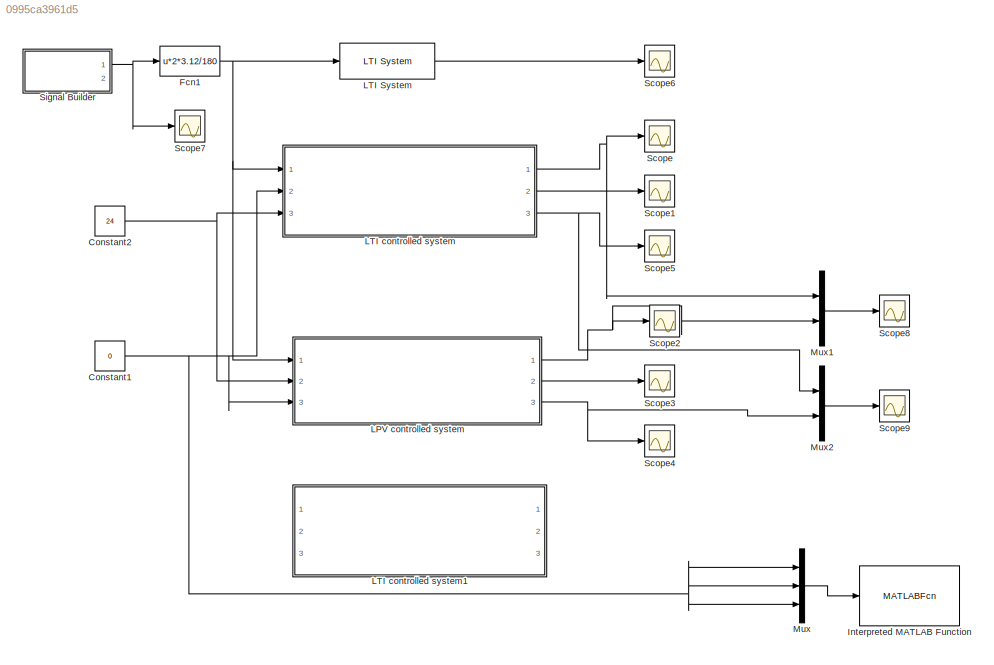
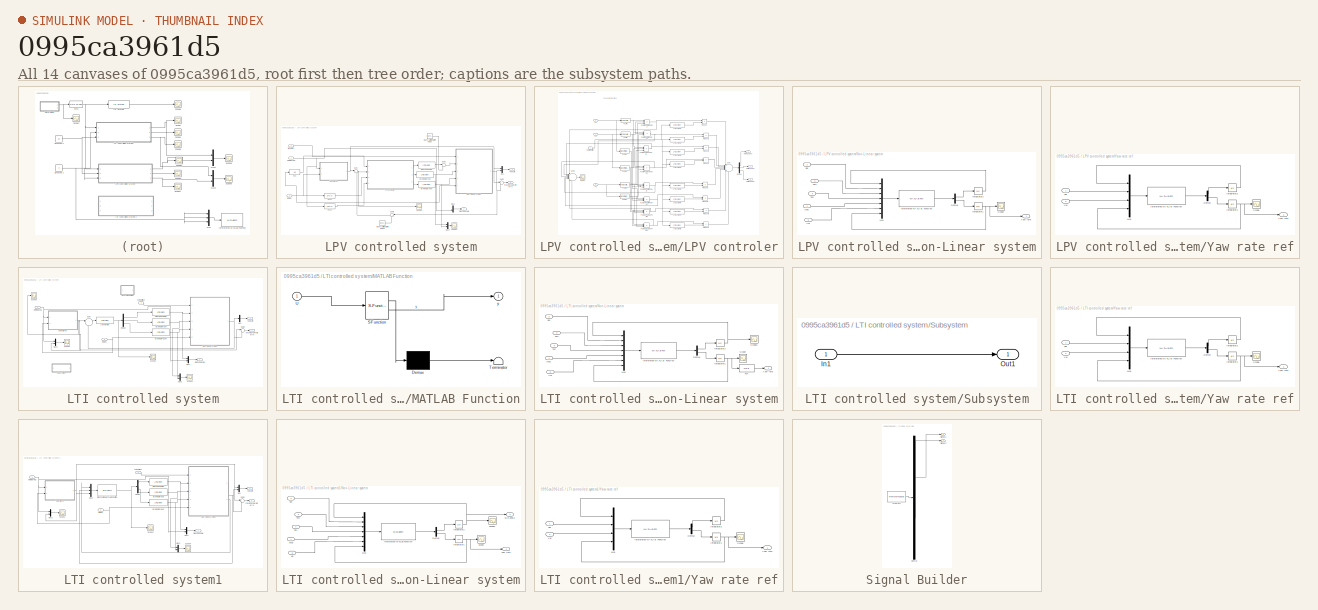
[diagram: thumbnail index - all 14 canvases of the model, root first then tree order]
MODEL slx_0995ca3961d5
KIND model
CONFIG AbsTol = auto
CONFIG EnableMultiTasking = on
CONFIG FixedStep = auto
CONFIG MaxStep = auto
CONFIG MinStep = auto
CONFIG RelTol = 1e-3
CONFIG SampleTimeConstraint = Unconstrained
CONFIG Solver = ode15s
CONFIG SolverName = ode15s
CONFIG StartTime = 0.0
CONFIG StopTime = 10.0
BLOCK [Constant] Constant1
  Value = 0
BLOCK [Constant] Constant2
  Value = 24
BLOCK [Fcn] Fcn1
  Expr = u*2*3.12/180
BLOCK [MATLABFcn] Interpreted MATLAB Function
  Commented = through
  MATLABFcn = MPC_control
  OutputDimensions = 3
  Ports = [1, 1]
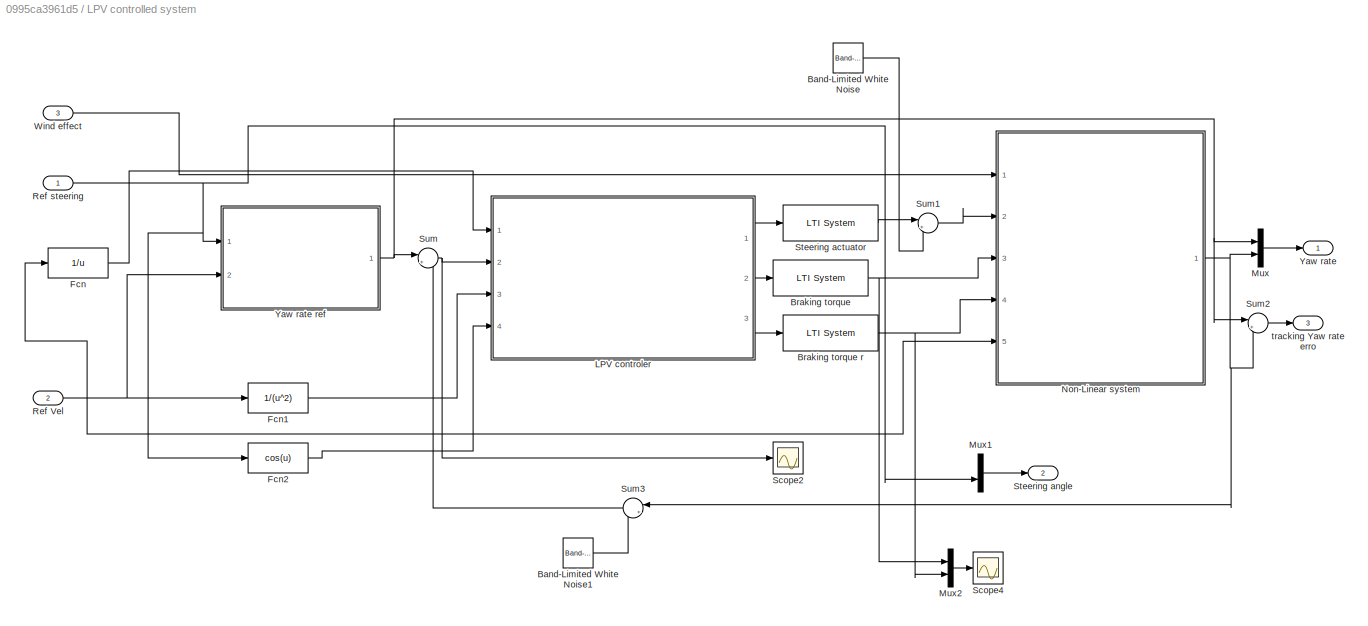
BLOCK [SubSystem] LPV controlled system
  Ports = [3, 3]
  RequestExecContextInheritance = off
BLOCK [Reference] LPV controlled system/Band-Limited White Noise  REF=simulink/Sources/Band-Limited
White Noise
  Commented = on
  Ports = [0, 1]
  SourceBlock = simulink/Sources/Band-Limited\nWhite Noise
  SourceProductBaseCode = SL
  SourceType = Band-Limited White Noise.
BLOCK [Reference] LPV controlled system/Band-Limited White Noise1  REF=simulink/Sources/Band-Limited
White Noise
  Commented = on
  Ports = [0, 1]
  SourceBlock = simulink/Sources/Band-Limited\nWhite Noise
  SourceProductBaseCode = SL
  SourceType = Band-Limited White Noise.
BLOCK [Reference] LPV controlled system/Braking torque  REF=cstblocks/LTI System
  Ports = [1, 1]
  SourceBlock = cstblocks/LTI System
  SourceProductBaseCode = CT
  SourceType = LTI Block
BLOCK [Reference] LPV controlled system/Braking torque r  REF=cstblocks/LTI System
  Ports = [1, 1]
  SourceBlock = cstblocks/LTI System
  SourceProductBaseCode = CT
  SourceType = LTI Block
BLOCK [Fcn] LPV controlled system/Fcn
  Expr = 1/u
BLOCK [Fcn] LPV controlled system/Fcn1
  Expr = 1/(u^2)
BLOCK [Fcn] LPV controlled system/Fcn2
  Expr = cos(u)
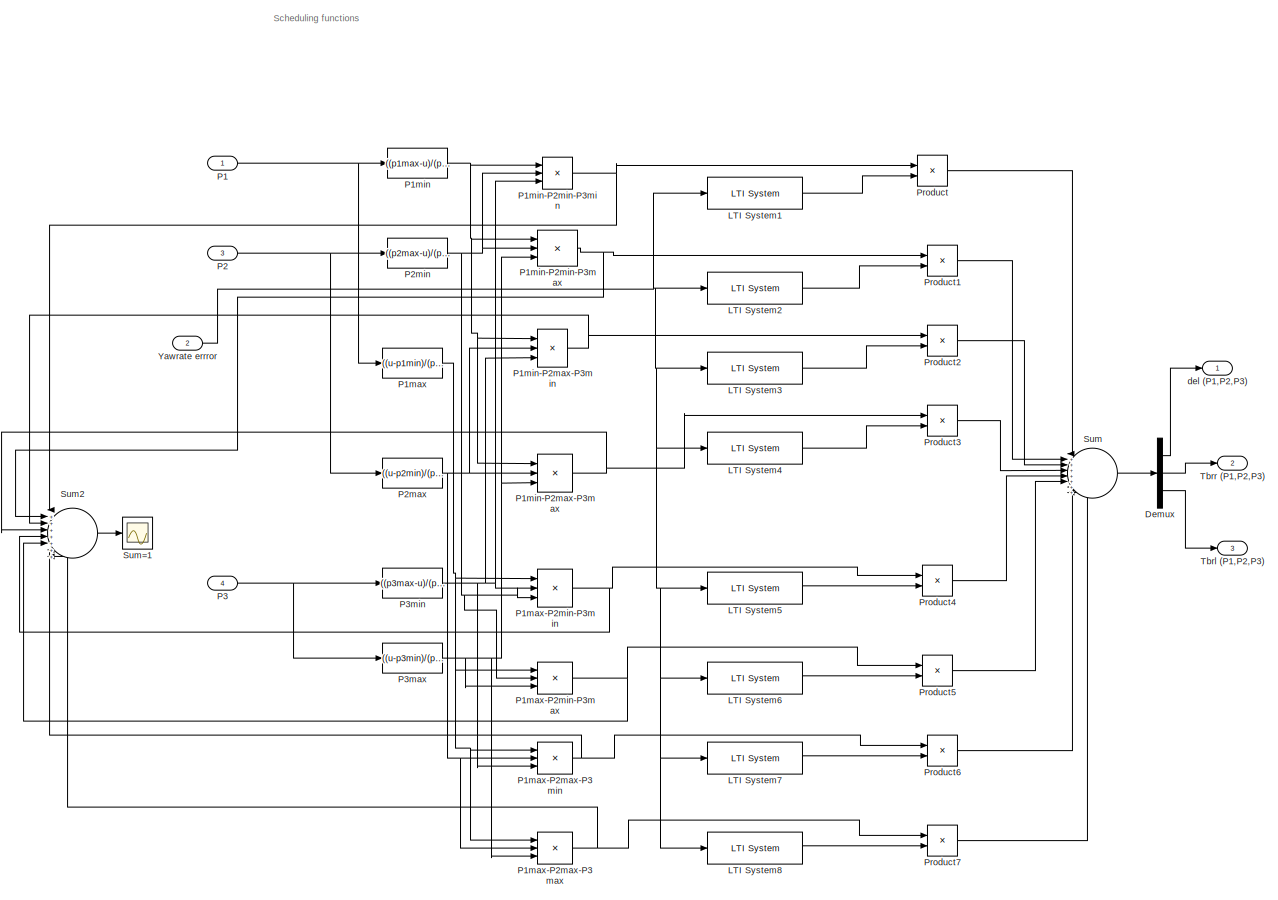
[diagram: LPV controlled system/LPV controler - part 1/1, most of the canvas]
BLOCK [SubSystem] LPV controlled system/LPV controler
  NameLocation = top
  Ports = [4, 3]
  RequestExecContextInheritance = off
BLOCK [Demux] LPV controlled system/LPV controler/Demux
  Outputs = 3
  Ports = [1, 3]
BLOCK [Reference] LPV controlled system/LPV controler/LTI System1  REF=cstblocks/LTI System
  Ports = [1, 1]
  SourceBlock = cstblocks/LTI System
  SourceProductBaseCode = CT
  SourceType = LTI Block
BLOCK [Reference] LPV controlled system/LPV controler/LTI System2  REF=cstblocks/LTI System
  Ports = [1, 1]
  SourceBlock = cstblocks/LTI System
  SourceProductBaseCode = CT
  SourceType = LTI Block
BLOCK [Reference] LPV controlled system/LPV controler/LTI System3  REF=cstblocks/LTI System
  Ports = [1, 1]
  SourceBlock = cstblocks/LTI System
  SourceProductBaseCode = CT
  SourceType = LTI Block
BLOCK [Reference] LPV controlled system/LPV controler/LTI System4  REF=cstblocks/LTI System
  Ports = [1, 1]
  SourceBlock = cstblocks/LTI System
  SourceProductBaseCode = CT
  SourceType = LTI Block
BLOCK [Reference] LPV controlled system/LPV controler/LTI System5  REF=cstblocks/LTI System
  Ports = [1, 1]
  SourceBlock = cstblocks/LTI System
  SourceProductBaseCode = CT
  SourceType = LTI Block
BLOCK [Reference] LPV controlled system/LPV controler/LTI System6  REF=cstblocks/LTI System
  Ports = [1, 1]
  SourceBlock = cstblocks/LTI System
  SourceProductBaseCode = CT
  SourceType = LTI Block
BLOCK [Reference] LPV controlled system/LPV controler/LTI System7  REF=cstblocks/LTI System
  Ports = [1, 1]
  SourceBlock = cstblocks/LTI System
  SourceProductBaseCode = CT
  SourceType = LTI Block
BLOCK [Reference] LPV controlled system/LPV controler/LTI System8  REF=cstblocks/LTI System
  Ports = [1, 1]
  SourceBlock = cstblocks/LTI System
  SourceProductBaseCode = CT
  SourceType = LTI Block
BLOCK [Inport] LPV controlled system/LPV controler/P1
BLOCK [Fcn] LPV controlled system/LPV controler/P1max
  Expr = ((u-p1min)/(p1max-p1min))
BLOCK [Product] LPV controlled system/LPV controler/P1max-P2max-P3max
  Inputs = 3
  Ports = [3, 1]
BLOCK [Product] LPV controlled system/LPV controler/P1max-P2max-P3min
  Inputs = 3
  Ports = [3, 1]
BLOCK [Product] LPV controlled system/LPV controler/P1max-P2min-P3max
  Inputs = 3
  Ports = [3, 1]
BLOCK [Product] LPV controlled system/LPV controler/P1max-P2min-P3min
  Inputs = 3
  Ports = [3, 1]
BLOCK [Fcn] LPV controlled system/LPV controler/P1min
  Expr = ((p1max-u)/(p1max-p1min))
BLOCK [Product] LPV controlled system/LPV controler/P1min-P2max-P3max
  Inputs = 3
  Ports = [3, 1]
BLOCK [Product] LPV controlled system/LPV controler/P1min-P2max-P3min
  Inputs = 3
  Ports = [3, 1]
BLOCK [Product] LPV controlled system/LPV controler/P1min-P2min-P3max
  Inputs = 3
  Ports = [3, 1]
BLOCK [Product] LPV controlled system/LPV controler/P1min-P2min-P3min
  Inputs = 3
  Ports = [3, 1]
BLOCK [Inport] LPV controlled system/LPV controler/P2
  Port = 3
BLOCK [Fcn] LPV controlled system/LPV controler/P2max
  Expr = ((u-p2min)/(p2max-p2min))
BLOCK [Fcn] LPV controlled system/LPV controler/P2min
  Expr = ((p2max-u)/(p2max-p2min))
BLOCK [Inport] LPV controlled system/LPV controler/P3
  Port = 4
BLOCK [Fcn] LPV controlled system/LPV controler/P3max
  Expr = ((u-p3min)/(p3max-p3min))
BLOCK [Fcn] LPV controlled system/LPV controler/P3min
  Expr = ((p3max-u)/(p3max-p3min))
BLOCK [Product] LPV controlled system/LPV controler/Product
  Ports = [2, 1]
BLOCK [Product] LPV controlled system/LPV controler/Product1
  Ports = [2, 1]
BLOCK [Product] LPV controlled system/LPV controler/Product2
  Ports = [2, 1]
BLOCK [Product] LPV controlled system/LPV controler/Product3
  Ports = [2, 1]
BLOCK [Product] LPV controlled system/LPV controler/Product4
  Ports = [2, 1]
BLOCK [Product] LPV controlled system/LPV controler/Product5
  Ports = [2, 1]
BLOCK [Product] LPV controlled system/LPV controler/Product6
  Ports = [2, 1]
BLOCK [Product] LPV controlled system/LPV controler/Product7
  Ports = [2, 1]
BLOCK [Sum] LPV controlled system/LPV controler/Sum
  Inputs = |++++++++
  Ports = [8, 1]
BLOCK [Sum] LPV controlled system/LPV controler/Sum2
  Inputs = |++++++++
  Ports = [8, 1]
BLOCK [Scope] LPV controlled system/LPV controler/Sum=1
  Floating = off
  NumInputPorts = 1
  Ports = [1]
  ScopeSpecificationString = C++SS(StrPVP('Location','[5, 49, 1371, 727]'),StrPVP('Open','off'),MxPVP('AxesTitles',54,'struct(''axes1'',''%<SignalLabel>'')'),MxPVP('ScopeGraphics',57,'struct(''FigureColor'',''[0.5 0.5 0.5]'',''AxesColor'',''[0 0 0]'',''AxesTickColor'',''[1 1 1]'',''LineColors'',''[1 1 0;1 0 1;0 1 1;1 0 0;0 1 0;0 0 1]'',''LineStyles'',''-|-|-|-|-|-'',''LineWidths'',''[0.5 0.5 0.5 0.5 0.5 0.5]'',''MarkerStyles'...<+190ch>
BLOCK [Outport] LPV controlled system/LPV controler/Tbrl (P1,P2,P3)
  Port = 3
BLOCK [Outport] LPV controlled system/LPV controler/Tbrr (P1,P2,P3)
  Port = 2
BLOCK [Inport] LPV controlled system/LPV controler/Yawrate errror 
  Port = 2
BLOCK [Outport] LPV controlled system/LPV controler/del (P1,P2,P3)
BLOCK [Mux] LPV controlled system/Mux
  DisplayOption = bar
  Inputs = 2
  Ports = [2, 1]
BLOCK [Mux] LPV controlled system/Mux1
  DisplayOption = bar
  Inputs = 2
  Ports = [2, 1]
BLOCK [Mux] LPV controlled system/Mux2
  DisplayOption = bar
  Inputs = 2
  Ports = [2, 1]
BLOCK [SubSystem] LPV controlled system/Non-Linear system
  Ports = [5, 1]
  RequestExecContextInheritance = off
BLOCK [Demux] LPV controlled system/Non-Linear system/Demux
  Outputs = 2
  Ports = [1, 2]
BLOCK [Integrator] LPV controlled system/Non-Linear system/Integrator1
  Ports = [1, 1]
BLOCK [Integrator] LPV controlled system/Non-Linear system/Integrator2
  Ports = [1, 1]
BLOCK [MATLABFcn] LPV controlled system/Non-Linear system/Interpreted MATLAB Function
  MATLABFcn = Nonbicycle
  OutputDimensions = 2
  Ports = [1, 1]
BLOCK [Inport] LPV controlled system/Non-Linear system/Mdz
BLOCK [Mux] LPV controlled system/Non-Linear system/Mux
  DisplayOption = bar
  Inputs = 7
  Ports = [7, 1]
BLOCK [Scope] LPV controlled system/Non-Linear system/Scope
  Floating = off
  NumInputPorts = 1
  Ports = [1]
  ScopeSpecificationString = C++SS(StrPVP('Location','[1, 49, 1367, 727]'),StrPVP('Open','off'),MxPVP('AxesTitles',54,'struct(''axes1'',''%<SignalLabel>'')'),MxPVP('ScopeGraphics',57,'struct(''FigureColor'',''[0.5 0.5 0.5]'',''AxesColor'',''[0 0 0]'',''AxesTickColor'',''[1 1 1]'',''LineColors'',''[1 1 0;1 0 1;0 1 1;1 0 0;0 1 0;0 0 1]'',''LineStyles'',''-|-|-|-|-|-'',''LineWidths'',''[0.5 0.5 0.5 0.5 0.5 0.5]'',''MarkerStyles'...<+237ch>  <repeated x3 — deduplicated; at blocks: Scope>
BLOCK [Inport] LPV controlled system/Non-Linear system/Tbrl
  Port = 4
BLOCK [Inport] LPV controlled system/Non-Linear system/Tbrr
  Port = 3
BLOCK [Inport] LPV controlled system/Non-Linear system/Vel
  Port = 5
BLOCK [Outport] LPV controlled system/Non-Linear system/Yaw rate
BLOCK [Inport] LPV controlled system/Non-Linear system/del
  Port = 2
BLOCK [Inport] LPV controlled system/Ref Vel
  Port = 2
BLOCK [Inport] LPV controlled system/Ref steering
BLOCK [Scope] LPV controlled system/Scope2
  Floating = off
  NumInputPorts = 1
  Ports = [1]
  ScopeSpecificationString = C++SS(StrPVP('Location','[1, 49, 1367, 727]'),StrPVP('Open','off'),MxPVP('AxesTitles',54,'struct(''axes1'',''%<SignalLabel>'')'),MxPVP('ScopeGraphics',57,'struct(''FigureColor'',''[0.5 0.5 0.5]'',''AxesColor'',''[0 0 0]'',''AxesTickColor'',''[1 1 1]'',''LineColors'',''[1 1 0;1 0 1;0 1 1;1 0 0;0 1 0;0 0 1]'',''LineStyles'',''-|-|-|-|-|-'',''LineWidths'',''[0.5 0.5 0.5 0.5 0.5 0.5]'',''MarkerStyles'...<+310ch>  <repeated x3 — deduplicated; at blocks: Scope2>
BLOCK [Scope] LPV controlled system/Scope4
  Floating = off
  NumInputPorts = 1
  Ports = [1]
  ScopeSpecificationString = C++SS(StrPVP('Location','[1, 49, 1367, 727]'),StrPVP('Open','off'),MxPVP('AxesTitles',54,'struct(''axes1'',''%<SignalLabel>'')'),MxPVP('ScopeGraphics',57,'struct(''FigureColor'',''[0.5 0.5 0.5]'',''AxesColor'',''[0 0 0]'',''AxesTickColor'',''[1 1 1]'',''LineColors'',''[1 1 0;1 0 1;0 1 1;1 0 0;0 1 0;0 0 1]'',''LineStyles'',''-|-|-|-|-|-'',''LineWidths'',''[0.5 0.5 0.5 0.5 0.5 0.5]'',''MarkerStyles'...<+355ch>
BLOCK [Reference] LPV controlled system/Steering actuator  REF=cstblocks/LTI System
  Ports = [1, 1]
  SourceBlock = cstblocks/LTI System
  SourceProductBaseCode = CT
  SourceType = LTI Block
BLOCK [Outport] LPV controlled system/Steering angle
  Port = 2
BLOCK [Sum] LPV controlled system/Sum
  Inputs = |+-
  Ports = [2, 1]
BLOCK [Sum] LPV controlled system/Sum1
  Inputs = |++
  Ports = [2, 1]
BLOCK [Sum] LPV controlled system/Sum2
  Inputs = |+-
  Ports = [2, 1]
BLOCK [Sum] LPV controlled system/Sum3
  Inputs = |++
  Ports = [2, 1]
BLOCK [Inport] LPV controlled system/Wind effect
  Port = 3
BLOCK [Outport] LPV controlled system/Yaw rate
BLOCK [SubSystem] LPV controlled system/Yaw rate ref
  Ports = [2, 1]
  RequestExecContextInheritance = off
BLOCK [Demux] LPV controlled system/Yaw rate ref/Demux
  Outputs = 2
  Ports = [1, 2]
BLOCK [Integrator] LPV controlled system/Yaw rate ref/Integrator1
  Ports = [1, 1]
BLOCK [Integrator] LPV controlled system/Yaw rate ref/Integrator2
  Ports = [1, 1]
BLOCK [MATLABFcn] LPV controlled system/Yaw rate ref/Interpreted MATLAB Function
  MATLABFcn = Reference
  OutputDimensions = 2
  Ports = [1, 1]
BLOCK [Mux] LPV controlled system/Yaw rate ref/Mux
  DisplayOption = bar
  Ports = [4, 1]
BLOCK [Scope] LPV controlled system/Yaw rate ref/Scope
  Floating = off
  NumInputPorts = 1
  Ports = [1]
  ScopeSpecificationString = C++SS(StrPVP('Location','[1, 49, 1367, 727]'),StrPVP('Open','off'),MxPVP('AxesTitles',54,'struct(''axes1'',''%<SignalLabel>'')'),MxPVP('ScopeGraphics',57,'struct(''FigureColor'',''[0.5 0.5 0.5]'',''AxesColor'',''[0 0 0]'',''AxesTickColor'',''[1 1 1]'',''LineColors'',''[1 1 0;1 0 1;0 1 1;1 0 0;0 1 0;0 0 1]'',''LineStyles'',''-|-|-|-|-|-'',''LineWidths'',''[0.5 0.5 0.5 0.5 0.5 0.5]'',''MarkerStyles'...<+270ch>  <repeated x3 — deduplicated; at blocks: Scope>
BLOCK [Inport] LPV controlled system/Yaw rate ref/Vel
  Port = 2
BLOCK [Outport] LPV controlled system/Yaw rate ref/Yaw rate
BLOCK [Inport] LPV controlled system/Yaw rate ref/del
BLOCK [Outport] LPV controlled system/tracking Yaw rate erro
  Port = 3
BLOCK [Reference] LTI System  REF=cstblocks/LTI System
  Ports = [1, 1]
  SourceBlock = cstblocks/LTI System
  SourceProductBaseCode = CT
  SourceType = LTI Block
BLOCK [SubSystem] LTI controlled system
  Ports = [3, 3]
  RequestExecContextInheritance = off
BLOCK [Reference] LTI controlled system/Braking torque  REF=cstblocks/LTI System
  Ports = [1, 1]
  SourceBlock = cstblocks/LTI System
  SourceProductBaseCode = CT
  SourceType = LTI Block
BLOCK [Reference] LTI controlled system/Braking torque r  REF=cstblocks/LTI System
  Ports = [1, 1]
  SourceBlock = cstblocks/LTI System
  SourceProductBaseCode = CT
  SourceType = LTI Block
BLOCK [Demux] LTI controlled system/Demux
  Outputs = 3
  Ports = [1, 3]
BLOCK [Reference] LTI controlled system/LTI controller  REF=cstblocks/LTI System
  Ports = [1, 1]
  SourceBlock = cstblocks/LTI System
  SourceProductBaseCode = CT
  SourceType = LTI Block
BLOCK [SubSystem] LTI controlled system/MATLAB Function
  ErrorFcn = Stateflow.Translate.translate
  PermitHierarchicalResolution = ExplicitOnly
  Ports = [1, 1]
  RequestExecContextInheritance = off
  SFBlockType = MATLAB Function
  TreatAsAtomicUnit = on
BLOCK [Demux] LTI controlled system/MATLAB Function/ Demux 
  Outputs = 1
  Ports = [1, 1]
BLOCK [S-Function] LTI controlled system/MATLAB Function/ SFunction 
  EnableBusSupport = off
  FunctionName = sf_sfun
  PortCounts = [1 2]
  Ports = [1, 2]
  SFcnIsStateOwnerBlock = off
  SFunctionDeploymentMode = off
  Tag = Stateflow S-Function 2
BLOCK [Terminator] LTI controlled system/MATLAB Function/ Terminator 
BLOCK [Inport] LTI controlled system/MATLAB Function/U
BLOCK [Outport] LTI controlled system/MATLAB Function/y
BLOCK [Mux] LTI controlled system/Mux
  DisplayOption = bar
  Inputs = 1
  Ports = [1, 1]
BLOCK [Mux] LTI controlled system/Mux1
  DisplayOption = bar
  Inputs = 2
  Ports = [2, 1]
BLOCK [Mux] LTI controlled system/Mux2
  DisplayOption = bar
  Inputs = 2
  Ports = [2, 1]
BLOCK [Mux] LTI controlled system/Mux3
  DisplayOption = bar
  Inputs = 2
  Ports = [2, 1]
BLOCK [SubSystem] LTI controlled system/Non-Linear system
  Ports = [5, 1]
  RequestExecContextInheritance = off
BLOCK [Demux] LTI controlled system/Non-Linear system/Demux
  Outputs = 2
  Ports = [1, 2]
BLOCK [Fcn] LTI controlled system/Non-Linear system/Fcn
  Expr = u*0.8
BLOCK [Integrator] LTI controlled system/Non-Linear system/Integrator1
  Ports = [1, 1]
BLOCK [Integrator] LTI controlled system/Non-Linear system/Integrator2
  Ports = [1, 1]
BLOCK [MATLABFcn] LTI controlled system/Non-Linear system/Interpreted MATLAB Function
  MATLABFcn = Nonbicycle
  OutputDimensions = 2
  Ports = [1, 1]
BLOCK [Inport] LTI controlled system/Non-Linear system/Mdz
BLOCK [Mux] LTI controlled system/Non-Linear system/Mux
  DisplayOption = bar
  Inputs = 7
  Ports = [7, 1]
BLOCK [Scope] LTI controlled system/Non-Linear system/Scope
  Floating = off
  NumInputPorts = 1
  Ports = [1]
BLOCK [Scope] LTI controlled system/Non-Linear system/Scope1
  Floating = off
  NumInputPorts = 1
  Ports = [1]
  ScopeSpecificationString = C++SS(StrPVP('Location','[1, 49, 1367, 727]'),StrPVP('Open','off'),MxPVP('AxesTitles',54,'struct(''axes1'',''%<SignalLabel>'')'),MxPVP('ScopeGraphics',57,'struct(''FigureColor'',''[0.5 0.5 0.5]'',''AxesColor'',''[0 0 0]'',''AxesTickColor'',''[1 1 1]'',''LineColors'',''[1 1 0;1 0 1;0 1 1;1 0 0;0 1 0;0 0 1]'',''LineStyles'',''-|-|-|-|-|-'',''LineWidths'',''[0.5 0.5 0.5 0.5 0.5 0.5]'',''MarkerStyles'...<+269ch>
BLOCK [Inport] LTI controlled system/Non-Linear system/Tbrl
  Port = 4
BLOCK [Inport] LTI controlled system/Non-Linear system/Tbrr
  Port = 3
BLOCK [Inport] LTI controlled system/Non-Linear system/Vel
  Port = 5
BLOCK [Outport] LTI controlled system/Non-Linear system/Yaw rate
BLOCK [Inport] LTI controlled system/Non-Linear system/del
  Port = 2
BLOCK [Inport] LTI controlled system/Ref Vel
  Port = 3
BLOCK [Inport] LTI controlled system/Ref steering
BLOCK [Scope] LTI controlled system/Scope1
  Floating = off
  NumInputPorts = 1
  Ports = [1]
  ScopeSpecificationString = C++SS(StrPVP('Location','[5, 49, 1371, 727]'),StrPVP('Open','off'),MxPVP('AxesTitles',54,'struct(''axes1'',''%<SignalLabel>'')'),MxPVP('ScopeGraphics',57,'struct(''FigureColor'',''[0.5 0.5 0.5]'',''AxesColor'',''[0 0 0]'',''AxesTickColor'',''[1 1 1]'',''LineColors'',''[1 1 0;1 0 1;0 1 1;1 0 0;0 1 0;0 0 1]'',''LineStyles'',''-|-|-|-|-|-'',''LineWidths'',''[0.5 0.5 0.5 0.5 0.5 0.5]'',''MarkerStyles'...<+320ch>  <repeated x4 — deduplicated; at blocks: Scope1, Scope, Scope4>
BLOCK [Scope] LTI controlled system/Scope2
  Floating = off
  NumInputPorts = 1
  Ports = [1]
BLOCK [Scope] LTI controlled system/Scope3
  Floating = off
  NumInputPorts = 1
  Ports = [1]
  ScopeSpecificationString = C++SS(StrPVP('Location','[1, 49, 1367, 727]'),StrPVP('Open','off'),MxPVP('AxesTitles',54,'struct(''axes1'',''%<SignalLabel>'')'),MxPVP('ScopeGraphics',57,'struct(''FigureColor'',''[0.501960784313725 0.501960784313725 0.501960784313725]'',''AxesColor'',''[0 0 0]'',''AxesTickColor'',''[1 1 1]'',''LineColors'',''[1 1 0;1 0 1;0 1 1;1 0 0;0 1 0;0 0 1]'',''LineStyles'',''-|-|-|-|-|-'',''LineWidths'',''[...<+390ch>
BLOCK [Scope] LTI controlled system/Scope4
  Floating = off
  NumInputPorts = 1
  Ports = [1]
  ScopeSpecificationString = C++SS(StrPVP('Location','[1, 49, 1367, 727]'),StrPVP('Open','off'),MxPVP('AxesTitles',54,'struct(''axes1'',''%<SignalLabel>'')'),MxPVP('ScopeGraphics',57,'struct(''FigureColor'',''[0.5 0.5 0.5]'',''AxesColor'',''[0 0 0]'',''AxesTickColor'',''[1 1 1]'',''LineColors'',''[1 1 0;1 0 1;0 1 1;1 0 0;0 1 0;0 0 1]'',''LineStyles'',''-|-|-|-|-|-'',''LineWidths'',''[0.5 0.5 0.5 0.5 0.5 0.5]'',''MarkerStyles'...<+320ch>  <repeated x3 — deduplicated; at blocks: Scope4, Scope1>
BLOCK [Reference] LTI controlled system/Steering actuator  REF=cstblocks/LTI System
  Ports = [1, 1]
  SourceBlock = cstblocks/LTI System
  SourceProductBaseCode = CT
  SourceType = LTI Block
BLOCK [Outport] LTI controlled system/Steering angle
  Port = 2
BLOCK [SubSystem] LTI controlled system/Subsystem
  Ports = [1, 1]
  RequestExecContextInheritance = off
BLOCK [Inport] LTI controlled system/Subsystem/In1
BLOCK [Outport] LTI controlled system/Subsystem/Out1
BLOCK [Sum] LTI controlled system/Sum
  Inputs = |+-
  Ports = [2, 1]
BLOCK [Sum] LTI controlled system/Sum2
  Inputs = |+-
  Ports = [2, 1]
BLOCK [Inport] LTI controlled system/Wind effect
  Port = 2
BLOCK [Outport] LTI controlled system/Yaw rate
BLOCK [SubSystem] LTI controlled system/Yaw rate ref
  Ports = [2, 1]
  RequestExecContextInheritance = off
BLOCK [Demux] LTI controlled system/Yaw rate ref/Demux
  Outputs = 2
  Ports = [1, 2]
BLOCK [Integrator] LTI controlled system/Yaw rate ref/Integrator1
  Ports = [1, 1]
BLOCK [Integrator] LTI controlled system/Yaw rate ref/Integrator2
  Ports = [1, 1]
BLOCK [MATLABFcn] LTI controlled system/Yaw rate ref/Interpreted MATLAB Function
  MATLABFcn = Reference
  OutputDimensions = 2
  Ports = [1, 1]
BLOCK [Mux] LTI controlled system/Yaw rate ref/Mux
  DisplayOption = bar
  Ports = [4, 1]
BLOCK [Scope] LTI controlled system/Yaw rate ref/Scope
  Floating = off
  NumInputPorts = 1
  Ports = [1]
BLOCK [Inport] LTI controlled system/Yaw rate ref/Vel
  Port = 2
BLOCK [Outport] LTI controlled system/Yaw rate ref/Yaw rate
BLOCK [Inport] LTI controlled system/Yaw rate ref/del
BLOCK [Outport] LTI controlled system/tracking Yaw rate erro
  Port = 3
BLOCK [SubSystem] LTI controlled system1
  Commented = through
  Ports = [3, 3]
  RequestExecContextInheritance = off
BLOCK [Reference] LTI controlled system1/Braking torque  REF=cstblocks/LTI System
  Ports = [1, 1]
  SourceBlock = cstblocks/LTI System
  SourceProductBaseCode = CT
  SourceType = LTI Block
BLOCK [Reference] LTI controlled system1/Braking torque r  REF=cstblocks/LTI System
  Ports = [1, 1]
  SourceBlock = cstblocks/LTI System
  SourceProductBaseCode = CT
  SourceType = LTI Block
BLOCK [Demux] LTI controlled system1/Demux
  Outputs = 3
  Ports = [1, 3]
BLOCK [MATLABFcn] LTI controlled system1/Interpreted MATLAB Function
  MATLABFcn = MPC_control
  OutputDimensions = 3
  Ports = [1, 1]
BLOCK [Mux] LTI controlled system1/Mux
  DisplayOption = bar
  Inputs = 2
  Ports = [2, 1]
BLOCK [Mux] LTI controlled system1/Mux1
  DisplayOption = bar
  Inputs = 2
  Ports = [2, 1]
BLOCK [Mux] LTI controlled system1/Mux2
  DisplayOption = bar
  Inputs = 2
  Ports = [2, 1]
BLOCK [Mux] LTI controlled system1/Mux3
  DisplayOption = bar
  Inputs = 2
  Ports = [2, 1]
BLOCK [Mux] LTI controlled system1/Mux4
  DisplayOption = bar
  Inputs = 3
  Ports = [3, 1]
BLOCK [SubSystem] LTI controlled system1/Non-Linear system
  Ports = [5, 2]
  RequestExecContextInheritance = off
BLOCK [Demux] LTI controlled system1/Non-Linear system/Demux
  Outputs = 2
  Ports = [1, 2]
BLOCK [Integrator] LTI controlled system1/Non-Linear system/Integrator1
  Ports = [1, 1]
BLOCK [Integrator] LTI controlled system1/Non-Linear system/Integrator2
  Ports = [1, 1]
BLOCK [MATLABFcn] LTI controlled system1/Non-Linear system/Interpreted MATLAB Function
  MATLABFcn = Nonbicycle
  OutputDimensions = 2
  Ports = [1, 1]
BLOCK [Inport] LTI controlled system1/Non-Linear system/Mdz
BLOCK [Mux] LTI controlled system1/Non-Linear system/Mux
  DisplayOption = bar
  Inputs = 7
  Ports = [7, 1]
BLOCK [Scope] LTI controlled system1/Non-Linear system/Scope
  Floating = off
  NumInputPorts = 1
  Ports = [1]
BLOCK [Scope] LTI controlled system1/Non-Linear system/Scope1
  Floating = off
  NumInputPorts = 1
  Ports = [1]
  ScopeSpecificationString = C++SS(StrPVP('Location','[1, 49, 1367, 727]'),StrPVP('Open','off'),MxPVP('AxesTitles',54,'struct(''axes1'',''%<SignalLabel>'')'),MxPVP('ScopeGraphics',57,'struct(''FigureColor'',''[0.5 0.5 0.5]'',''AxesColor'',''[0 0 0]'',''AxesTickColor'',''[1 1 1]'',''LineColors'',''[1 1 0;1 0 1;0 1 1;1 0 0;0 1 0;0 0 1]'',''LineStyles'',''-|-|-|-|-|-'',''LineWidths'',''[0.5 0.5 0.5 0.5 0.5 0.5]'',''MarkerStyles'...<+269ch>
BLOCK [Outport] LTI controlled system1/Non-Linear system/Slib angle
  Port = 2
BLOCK [Inport] LTI controlled system1/Non-Linear system/Tbrl
  Port = 4
BLOCK [Inport] LTI controlled system1/Non-Linear system/Tbrr
  Port = 3
BLOCK [Inport] LTI controlled system1/Non-Linear system/Vel
  Port = 5
BLOCK [Outport] LTI controlled system1/Non-Linear system/Yaw rate
BLOCK [Inport] LTI controlled system1/Non-Linear system/del
  Port = 2
BLOCK [Inport] LTI controlled system1/Ref Vel
  Port = 3
BLOCK [Inport] LTI controlled system1/Ref steering
BLOCK [Scope] LTI controlled system1/Scope1
  Floating = off
  NumInputPorts = 1
  Ports = [1]
BLOCK [Scope] LTI controlled system1/Scope2
  Floating = off
  NumInputPorts = 1
  Ports = [1]
BLOCK [Scope] LTI controlled system1/Scope4
  Floating = off
  NumInputPorts = 1
  Ports = [1]
BLOCK [Reference] LTI controlled system1/Steering actuator  REF=cstblocks/LTI System
  Ports = [1, 1]
  SourceBlock = cstblocks/LTI System
  SourceProductBaseCode = CT
  SourceType = LTI Block
BLOCK [Outport] LTI controlled system1/Steering angle
  Port = 2
BLOCK [Sum] LTI controlled system1/Sum2
  Inputs = |+-
  Ports = [2, 1]
BLOCK [Inport] LTI controlled system1/Wind effect
  Port = 2
BLOCK [Outport] LTI controlled system1/Yaw rate
BLOCK [SubSystem] LTI controlled system1/Yaw rate ref
  Ports = [2, 1]
  RequestExecContextInheritance = off
BLOCK [Demux] LTI controlled system1/Yaw rate ref/Demux
  Outputs = 2
  Ports = [1, 2]
BLOCK [Integrator] LTI controlled system1/Yaw rate ref/Integrator1
  Ports = [1, 1]
BLOCK [Integrator] LTI controlled system1/Yaw rate ref/Integrator2
  Ports = [1, 1]
BLOCK [MATLABFcn] LTI controlled system1/Yaw rate ref/Interpreted MATLAB Function
  MATLABFcn = Reference
  OutputDimensions = 2
  Ports = [1, 1]
BLOCK [Mux] LTI controlled system1/Yaw rate ref/Mux
  DisplayOption = bar
  Ports = [4, 1]
BLOCK [Scope] LTI controlled system1/Yaw rate ref/Scope
  Floating = off
  NumInputPorts = 1
  Ports = [1]
BLOCK [Inport] LTI controlled system1/Yaw rate ref/Vel
  Port = 2
BLOCK [Outport] LTI controlled system1/Yaw rate ref/Yaw rate
BLOCK [Inport] LTI controlled system1/Yaw rate ref/del
BLOCK [Outport] LTI controlled system1/tracking Yaw rate erro
  Port = 3
BLOCK [Mux] Mux
  DisplayOption = bar
  Inputs = 3
  Ports = [3, 1]
BLOCK [Mux] Mux1
  DisplayOption = bar
  Inputs = 2
  Ports = [2, 1]
BLOCK [Mux] Mux2
  DisplayOption = bar
  Inputs = 2
  Ports = [2, 1]
BLOCK [Scope] Scope
  Floating = off
  NumInputPorts = 1
  Ports = [1]
BLOCK [Scope] Scope1
  Floating = off
  NumInputPorts = 1
  Ports = [1]
BLOCK [Scope] Scope2
  Floating = off
  NumInputPorts = 1
  Ports = [1]
  ScopeSpecificationString = C++SS(StrPVP('Location','[5, 49, 1371, 727]'),StrPVP('Open','off'),MxPVP('AxesTitles',54,'struct(''axes1'',''%<SignalLabel>'')'),MxPVP('ScopeGraphics',57,'struct(''FigureColor'',''[0.5 0.5 0.5]'',''AxesColor'',''[0 0 0]'',''AxesTickColor'',''[1 1 1]'',''LineColors'',''[1 1 0;1 0 1;0 1 1;1 0 0;0 1 0;0 0 1]'',''LineStyles'',''-|-|-|-|-|-'',''LineWidths'',''[0.5 0.5 0.5 0.5 0.5 0.5]'',''MarkerStyles'...<+360ch>
BLOCK [Scope] Scope3
  Floating = off
  NumInputPorts = 1
  Ports = [1]
  ScopeSpecificationString = C++SS(StrPVP('Location','[5, 49, 1371, 727]'),StrPVP('Open','off'),MxPVP('AxesTitles',54,'struct(''axes1'',''%<SignalLabel>'')'),MxPVP('ScopeGraphics',57,'struct(''FigureColor'',''[0.5 0.5 0.5]'',''AxesColor'',''[0 0 0]'',''AxesTickColor'',''[1 1 1]'',''LineColors'',''[1 1 0;1 0 1;0 1 1;1 0 0;0 1 0;0 0 1]'',''LineStyles'',''-|-|-|-|-|-'',''LineWidths'',''[0.5 0.5 0.5 0.5 0.5 0.5]'',''MarkerStyles'...<+355ch>
BLOCK [Scope] Scope4
  Floating = off
  NumInputPorts = 1
  Ports = [1]
BLOCK [Scope] Scope5
  Floating = off
  NumInputPorts = 1
  Ports = [1]
  ScopeSpecificationString = C++SS(StrPVP('Location','[5, 49, 1371, 727]'),StrPVP('Open','off'),MxPVP('AxesTitles',54,'struct(''axes1'',''%<SignalLabel>'')'),MxPVP('ScopeGraphics',57,'struct(''FigureColor'',''[0.5 0.5 0.5]'',''AxesColor'',''[0 0 0]'',''AxesTickColor'',''[1 1 1]'',''LineColors'',''[1 1 0;1 0 1;0 1 1;1 0 0;0 1 0;0 0 1]'',''LineStyles'',''-|-|-|-|-|-'',''LineWidths'',''[0.5 0.5 0.5 0.5 0.5 0.5]'',''MarkerStyles'...<+321ch>
BLOCK [Scope] Scope6
  Floating = off
  NumInputPorts = 1
  Ports = [1]
  ScopeSpecificationString = C++SS(StrPVP('Location','[5, 49, 1371, 727]'),StrPVP('Open','off'),MxPVP('AxesTitles',54,'struct(''axes1'',''%<SignalLabel>'')'),MxPVP('ScopeGraphics',57,'struct(''FigureColor'',''[0.5 0.5 0.5]'',''AxesColor'',''[0 0 0]'',''AxesTickColor'',''[1 1 1]'',''LineColors'',''[1 1 0;1 0 1;0 1 1;1 0 0;0 1 0;0 0 1]'',''LineStyles'',''-|-|-|-|-|-'',''LineWidths'',''[0.5 0.5 0.5 0.5 0.5 0.5]'',''MarkerStyles'...<+321ch>
BLOCK [Scope] Scope7
  Floating = off
  NumInputPorts = 1
  Ports = [1]
  ScopeSpecificationString = C++SS(StrPVP('Location','[5, 49, 1371, 727]'),StrPVP('Open','off'),MxPVP('AxesTitles',54,'struct(''axes1'',''%<SignalLabel>'')'),MxPVP('ScopeGraphics',57,'struct(''FigureColor'',''[0.5 0.5 0.5]'',''AxesColor'',''[0 0 0]'',''AxesTickColor'',''[1 1 1]'',''LineColors'',''[1 1 0;1 0 1;0 1 1;1 0 0;0 1 0;0 0 1]'',''LineStyles'',''-|-|-|-|-|-'',''LineWidths'',''[0.5 0.5 0.5 0.5 0.5 0.5]'',''MarkerStyles'...<+358ch>
BLOCK [Scope] Scope8
  Floating = off
  NumInputPorts = 1
  Ports = [1]
  ScopeSpecificationString = C++SS(StrPVP('Location','[1, 49, 1367, 727]'),StrPVP('Open','off'),MxPVP('AxesTitles',54,'struct(''axes1'',''%<SignalLabel>'')'),MxPVP('ScopeGraphics',57,'struct(''FigureColor'',''[0.5 0.5 0.5]'',''AxesColor'',''[0 0 0]'',''AxesTickColor'',''[1 1 1]'',''LineColors'',''[1 1 0;1 0 1;0 1 1;1 0 0;0 1 0;0 0 1]'',''LineStyles'',''-|-|-|-|-|-'',''LineWidths'',''[0.5 0.5 0.5 0.5 0.5 0.5]'',''MarkerStyles'...<+360ch>
BLOCK [Scope] Scope9
  Floating = off
  NumInputPorts = 1
  Ports = [1]
  ScopeSpecificationString = C++SS(StrPVP('Location','[5, 49, 1371, 727]'),StrPVP('Open','off'),MxPVP('AxesTitles',54,'struct(''axes1'',''%<SignalLabel>'')'),MxPVP('ScopeGraphics',57,'struct(''FigureColor'',''[0.5 0.5 0.5]'',''AxesColor'',''[0 0 0]'',''AxesTickColor'',''[1 1 1]'',''LineColors'',''[1 1 0;1 0 1;0 1 1;1 0 0;0 1 0;0 0 1]'',''LineStyles'',''-|-|-|-|-|-'',''LineWidths'',''[0.5 0.5 0.5 0.5 0.5 0.5]'',''MarkerStyles'...<+329ch>
BLOCK [SubSystem] Signal Builder
  ClipboardFcn = sigbuilder_block('clipboard');
  CloseFcn = sigbuilder_block('close');
  ContinueFcn = sigbuilder_block('continue');
  CopyFcn = sigbuilder_block('copy');
  DeleteFcn = sigbuilder_block('delete');
  LoadFcn = sigbuilder_block('load');
  MaskHideContents = on
  ModelCloseFcn = sigbuilder_block('modelClose');
  NameChangeFcn = sigbuilder_block('namechange');
  OpenFcn = sigbuilder_block('open',[6 28.5 1012.5 483.75 ]);
  PauseFcn = sigbuilder_block('pause');
  Ports = [0, 2]
  PreSaveFcn = sigbuilder_block('preSave');
  RequestExecContextInheritance = off
  StartFcn = sigbuilder_block('start');
  StopFcn = sigbuilder_block('stop');
  Tag = STV Subsys
BLOCK [Demux] Signal Builder/Demux
  DisplayOption = none
  Outputs = 2
  Ports = [1, 2]
  Tag = STV Demux
BLOCK [FromWorkspace] Signal Builder/FromWs
  Tag = STV FromWs
  VariableName = tuvar
BLOCK [Outport] Signal Builder/Signal 1
  Tag = STV Outport
BLOCK [Outport] Signal Builder/Signal 2
  Port = 2
  Tag = STV Outport
ANNOTATION LPV controlled system/LPV controler: Scheduling functions
NET Constant1:1 -> LPV controlled system:3, LTI controlled system:2, Mux:1, Mux:2, Mux:3
NET Constant2:1 -> LPV controlled system:2, LTI controlled system:3
NET Fcn1:1 -> LPV controlled system:1, LTI System:1, LTI controlled system:1
LINE LPV controlled system/Band-Limited White Noise1:1 -> LPV controlled system/Sum3:2
LINE LPV controlled system/Band-Limited White Noise:1 -> LPV controlled system/Sum1:2
NET LPV controlled system/Braking torque r:1 -> LPV controlled system/Mux2:2, LPV controlled system/Non-Linear system:4
NET LPV controlled system/Braking torque:1 -> LPV controlled system/Mux2:1, LPV controlled system/Non-Linear system:3
LINE LPV controlled system/Fcn1:1 -> LPV controlled system/LPV controler:3
LINE LPV controlled system/Fcn2:1 -> LPV controlled system/LPV controler:4
LINE LPV controlled system/Fcn:1 -> LPV controlled system/LPV controler:1
LINE LPV controlled system/LPV controler/Demux:1 -> LPV controlled system/LPV controler/del (P1,P2,P3):1
LINE LPV controlled system/LPV controler/Demux:2 -> LPV controlled system/LPV controler/Tbrr (P1,P2,P3):1
LINE LPV controlled system/LPV controler/Demux:3 -> LPV controlled system/LPV controler/Tbrl (P1,P2,P3):1
LINE LPV controlled system/LPV controler/LTI System1:1 -> LPV controlled system/LPV controler/Product:2
LINE LPV controlled system/LPV controler/LTI System2:1 -> LPV controlled system/LPV controler/Product1:2
LINE LPV controlled system/LPV controler/LTI System3:1 -> LPV controlled system/LPV controler/Product2:2
LINE LPV controlled system/LPV controler/LTI System4:1 -> LPV controlled system/LPV controler/Product3:2
LINE LPV controlled system/LPV controler/LTI System5:1 -> LPV controlled system/LPV controler/Product4:2
LINE LPV controlled system/LPV controler/LTI System6:1 -> LPV controlled system/LPV controler/Product5:2
LINE LPV controlled system/LPV controler/LTI System7:1 -> LPV controlled system/LPV controler/Product6:2
LINE LPV controlled system/LPV controler/LTI System8:1 -> LPV controlled system/LPV controler/Product7:2
NET LPV controlled system/LPV controler/P1:1 -> LPV controlled system/LPV controler/P1max:1, LPV controlled system/LPV controler/P1min:1
NET LPV controlled system/LPV controler/P1max-P2max-P3max:1 -> LPV controlled system/LPV controler/Product7:1, LPV controlled system/LPV controler/Sum2:8
NET LPV controlled system/LPV controler/P1max-P2max-P3min:1 -> LPV controlled system/LPV controler/Product6:1, LPV controlled system/LPV controler/Sum2:7
NET LPV controlled system/LPV controler/P1max-P2min-P3max:1 -> LPV controlled system/LPV controler/Product5:1, LPV controlled system/LPV controler/Sum2:6
NET LPV controlled system/LPV controler/P1max-P2min-P3min:1 -> LPV controlled system/LPV controler/Product4:1, LPV controlled system/LPV controler/Sum2:5
NET LPV controlled system/LPV controler/P1max:1 -> LPV controlled system/LPV controler/P1max-P2max-P3max:1, LPV controlled system/LPV controler/P1max-P2max-P3min:1, LPV controlled system/LPV controler/P1max-P2min-P3max:1, LPV controlled system/LPV controler/P1max-P2min-P3min:1
NET LPV controlled system/LPV controler/P1min-P2max-P3max:1 -> LPV controlled system/LPV controler/Product3:1, LPV controlled system/LPV controler/Sum2:4
NET LPV controlled system/LPV controler/P1min-P2max-P3min:1 -> LPV controlled system/LPV controler/Product2:1, LPV controlled system/LPV controler/Sum2:3
NET LPV controlled system/LPV controler/P1min-P2min-P3max:1 -> LPV controlled system/LPV controler/Product1:1, LPV controlled system/LPV controler/Sum2:2
NET LPV controlled system/LPV controler/P1min-P2min-P3min:1 -> LPV controlled system/LPV controler/Product:1, LPV controlled system/LPV controler/Sum2:1
NET LPV controlled system/LPV controler/P1min:1 -> LPV controlled system/LPV controler/P1min-P2max-P3max:1, LPV controlled system/LPV controler/P1min-P2max-P3min:1, LPV controlled system/LPV controler/P1min-P2min-P3max:1, LPV controlled system/LPV controler/P1min-P2min-P3min:1
NET LPV controlled system/LPV controler/P2:1 -> LPV controlled system/LPV controler/P2max:1, LPV controlled system/LPV controler/P2min:1
NET LPV controlled system/LPV controler/P2max:1 -> LPV controlled system/LPV controler/P1max-P2max-P3max:2, LPV controlled system/LPV controler/P1max-P2max-P3min:2, LPV controlled system/LPV controler/P1min-P2max-P3max:2, LPV controlled system/LPV controler/P1min-P2max-P3min:2
NET LPV controlled system/LPV controler/P2min:1 -> LPV controlled system/LPV controler/P1max-P2min-P3max:2, LPV controlled system/LPV controler/P1max-P2min-P3min:2, LPV controlled system/LPV controler/P1min-P2min-P3max:2, LPV controlled system/LPV controler/P1min-P2min-P3min:2
NET LPV controlled system/LPV controler/P3:1 -> LPV controlled system/LPV controler/P3max:1, LPV controlled system/LPV controler/P3min:1
NET LPV controlled system/LPV controler/P3max:1 -> LPV controlled system/LPV controler/P1max-P2max-P3max:3, LPV controlled system/LPV controler/P1max-P2min-P3max:3, LPV controlled system/LPV controler/P1min-P2max-P3max:3, LPV controlled system/LPV controler/P1min-P2min-P3max:3
NET LPV controlled system/LPV controler/P3min:1 -> LPV controlled system/LPV controler/P1max-P2max-P3min:3, LPV controlled system/LPV controler/P1max-P2min-P3min:3, LPV controlled system/LPV controler/P1min-P2max-P3min:3, LPV controlled system/LPV controler/P1min-P2min-P3min:3
LINE LPV controlled system/LPV controler/Product1:1 -> LPV controlled system/LPV controler/Sum:2
LINE LPV controlled system/LPV controler/Product2:1 -> LPV controlled system/LPV controler/Sum:3
LINE LPV controlled system/LPV controler/Product3:1 -> LPV controlled system/LPV controler/Sum:4
LINE LPV controlled system/LPV controler/Product4:1 -> LPV controlled system/LPV controler/Sum:5
LINE LPV controlled system/LPV controler/Product5:1 -> LPV controlled system/LPV controler/Sum:6
LINE LPV controlled system/LPV controler/Product6:1 -> LPV controlled system/LPV controler/Sum:7
LINE LPV controlled system/LPV controler/Product7:1 -> LPV controlled system/LPV controler/Sum:8
LINE LPV controlled system/LPV controler/Product:1 -> LPV controlled system/LPV controler/Sum:1
LINE LPV controlled system/LPV controler/Sum2:1 -> LPV controlled system/LPV controler/Sum=1:1
LINE LPV controlled system/LPV controler/Sum:1 -> LPV controlled system/LPV controler/Demux:1
NET LPV controlled system/LPV controler/Yawrate errror :1 -> LPV controlled system/LPV controler/LTI System1:1, LPV controlled system/LPV controler/LTI System2:1, LPV controlled system/LPV controler/LTI System3:1, LPV controlled system/LPV controler/LTI System4:1, LPV controlled system/LPV controler/LTI System5:1, LPV controlled system/LPV controler/LTI System6:1, LPV controlled system/LPV controler/LTI System7:1, LPV controlled system/LPV controler/LTI System8:1
LINE LPV controlled system/LPV controler:1 -> LPV controlled system/Steering actuator:1
LINE LPV controlled system/LPV controler:2 -> LPV controlled system/Braking torque:1
LINE LPV controlled system/LPV controler:3 -> LPV controlled system/Braking torque r:1
LINE LPV controlled system/Mux1:1 -> LPV controlled system/Steering angle:1
LINE LPV controlled system/Mux2:1 -> LPV controlled system/Scope4:1
LINE LPV controlled system/Mux:1 -> LPV controlled system/Yaw rate:1
LINE LPV controlled system/Non-Linear system/Demux:1 -> LPV controlled system/Non-Linear system/Integrator2:1
LINE LPV controlled system/Non-Linear system/Demux:2 -> LPV controlled system/Non-Linear system/Integrator1:1
NET LPV controlled system/Non-Linear system/Integrator1:1 -> LPV controlled system/Non-Linear system/Mux:7, LPV controlled system/Non-Linear system/Scope:1, LPV controlled system/Non-Linear system/Yaw rate:1
LINE LPV controlled system/Non-Linear system/Integrator2:1 -> LPV controlled system/Non-Linear system/Mux:1
LINE LPV controlled system/Non-Linear system/Interpreted MATLAB Function:1 -> LPV controlled system/Non-Linear system/Demux:1
LINE LPV controlled system/Non-Linear system/Mdz:1 -> LPV controlled system/Non-Linear system/Mux:5
LINE LPV controlled system/Non-Linear system/Mux:1 -> LPV controlled system/Non-Linear system/Interpreted MATLAB Function:1
LINE LPV controlled system/Non-Linear system/Tbrl:1 -> LPV controlled system/Non-Linear system/Mux:4
LINE LPV controlled system/Non-Linear system/Tbrr:1 -> LPV controlled system/Non-Linear system/Mux:3
LINE LPV controlled system/Non-Linear system/Vel:1 -> LPV controlled system/Non-Linear system/Mux:6
LINE LPV controlled system/Non-Linear system/del:1 -> LPV controlled system/Non-Linear system/Mux:2
NET LPV controlled system/Non-Linear system:1 -> LPV controlled system/Mux:2, LPV controlled system/Sum2:2, LPV controlled system/Sum3:1
NET LPV controlled system/Ref Vel:1 -> LPV controlled system/Fcn1:1, LPV controlled system/Fcn:1, LPV controlled system/Non-Linear system:5, LPV controlled system/Yaw rate ref:2
NET LPV controlled system/Ref steering:1 -> LPV controlled system/Fcn2:1, LPV controlled system/Mux1:2, LPV controlled system/Yaw rate ref:1
LINE LPV controlled system/Steering actuator:1 -> LPV controlled system/Sum1:1
LINE LPV controlled system/Sum1:1 -> LPV controlled system/Non-Linear system:2
LINE LPV controlled system/Sum2:1 -> LPV controlled system/tracking Yaw rate erro:1
LINE LPV controlled system/Sum3:1 -> LPV controlled system/Sum:2
NET LPV controlled system/Sum:1 -> LPV controlled system/LPV controler:2, LPV controlled system/Scope2:1
LINE LPV controlled system/Wind effect:1 -> LPV controlled system/Non-Linear system:1
LINE LPV controlled system/Yaw rate ref/Demux:1 -> LPV controlled system/Yaw rate ref/Integrator2:1
LINE LPV controlled system/Yaw rate ref/Demux:2 -> LPV controlled system/Yaw rate ref/Integrator1:1
NET LPV controlled system/Yaw rate ref/Integrator1:1 -> LPV controlled system/Yaw rate ref/Mux:4, LPV controlled system/Yaw rate ref/Scope:1, LPV controlled system/Yaw rate ref/Yaw rate:1
LINE LPV controlled system/Yaw rate ref/Integrator2:1 -> LPV controlled system/Yaw rate ref/Mux:1
LINE LPV controlled system/Yaw rate ref/Interpreted MATLAB Function:1 -> LPV controlled system/Yaw rate ref/Demux:1
LINE LPV controlled system/Yaw rate ref/Mux:1 -> LPV controlled system/Yaw rate ref/Interpreted MATLAB Function:1
LINE LPV controlled system/Yaw rate ref/Vel:1 -> LPV controlled system/Yaw rate ref/Mux:3
LINE LPV controlled system/Yaw rate ref/del:1 -> LPV controlled system/Yaw rate ref/Mux:2
NET LPV controlled system/Yaw rate ref:1 -> LPV controlled system/Mux:1, LPV controlled system/Sum2:1, LPV controlled system/Sum:1
NET LPV controlled system:1 -> Mux1:2, Scope2:1
LINE LPV controlled system:2 -> Scope3:1
NET LPV controlled system:3 -> Mux2:2, Scope4:1
LINE LTI System:1 -> Scope6:1
NET LTI controlled system/Braking torque r:1 -> LTI controlled system/Mux2:2, LTI controlled system/Non-Linear system:4
NET LTI controlled system/Braking torque:1 -> LTI controlled system/Mux2:1, LTI controlled system/Non-Linear system:3
LINE LTI controlled system/Demux:1 -> LTI controlled system/Steering actuator:1
LINE LTI controlled system/Demux:2 -> LTI controlled system/Braking torque:1
LINE LTI controlled system/Demux:3 -> LTI controlled system/Braking torque r:1
NET LTI controlled system/LTI controller:1 -> LTI controlled system/Demux:1, LTI controlled system/Scope2:1
LINE LTI controlled system/Mux1:1 -> LTI controlled system/Steering angle:1
LINE LTI controlled system/Mux2:1 -> LTI controlled system/Scope4:1
LINE LTI controlled system/Mux3:1 -> LTI controlled system/Scope1:1
LINE LTI controlled system/Mux:1 -> LTI controlled system/Yaw rate:1
LINE LTI controlled system/Non-Linear system/Demux:1 -> LTI controlled system/Non-Linear system/Integrator2:1
LINE LTI controlled system/Non-Linear system/Demux:2 -> LTI controlled system/Non-Linear system/Integrator1:1
LINE LTI controlled system/Non-Linear system/Fcn:1 -> LTI controlled system/Non-Linear system/Yaw rate:1
NET LTI controlled system/Non-Linear system/Integrator1:1 -> LTI controlled system/Non-Linear system/Fcn:1, LTI controlled system/Non-Linear system/Mux:7, LTI controlled system/Non-Linear system/Scope:1
NET LTI controlled system/Non-Linear system/Integrator2:1 -> LTI controlled system/Non-Linear system/Mux:1, LTI controlled system/Non-Linear system/Scope1:1
LINE LTI controlled system/Non-Linear system/Interpreted MATLAB Function:1 -> LTI controlled system/Non-Linear system/Demux:1
LINE LTI controlled system/Non-Linear system/Mdz:1 -> LTI controlled system/Non-Linear system/Mux:5
LINE LTI controlled system/Non-Linear system/Mux:1 -> LTI controlled system/Non-Linear system/Interpreted MATLAB Function:1
LINE LTI controlled system/Non-Linear system/Tbrl:1 -> LTI controlled system/Non-Linear system/Mux:4
LINE LTI controlled system/Non-Linear system/Tbrr:1 -> LTI controlled system/Non-Linear system/Mux:3
LINE LTI controlled system/Non-Linear system/Vel:1 -> LTI controlled system/Non-Linear system/Mux:6
LINE LTI controlled system/Non-Linear system/del:1 -> LTI controlled system/Non-Linear system/Mux:2
NET LTI controlled system/Non-Linear system:1 -> LTI controlled system/Mux:1, LTI controlled system/Sum2:2, LTI controlled system/Sum:2
NET LTI controlled system/Ref Vel:1 -> LTI controlled system/Non-Linear system:5, LTI controlled system/Yaw rate ref:2
NET LTI controlled system/Ref steering:1 -> LTI controlled system/Mux1:2, LTI controlled system/Mux3:1, LTI controlled system/Yaw rate ref:1
NET LTI controlled system/Steering actuator:1 -> LTI controlled system/Mux1:1, LTI controlled system/Non-Linear system:2
LINE LTI controlled system/Subsystem/In1:1 -> LTI controlled system/Subsystem/Out1:1
LINE LTI controlled system/Sum2:1 -> LTI controlled system/tracking Yaw rate erro:1
LINE LTI controlled system/Sum:1 -> LTI controlled system/LTI controller:1
LINE LTI controlled system/Wind effect:1 -> LTI controlled system/Non-Linear system:1
LINE LTI controlled system/Yaw rate ref/Demux:1 -> LTI controlled system/Yaw rate ref/Integrator2:1
LINE LTI controlled system/Yaw rate ref/Demux:2 -> LTI controlled system/Yaw rate ref/Integrator1:1
NET LTI controlled system/Yaw rate ref/Integrator1:1 -> LTI controlled system/Yaw rate ref/Mux:4, LTI controlled system/Yaw rate ref/Scope:1, LTI controlled system/Yaw rate ref/Yaw rate:1
LINE LTI controlled system/Yaw rate ref/Integrator2:1 -> LTI controlled system/Yaw rate ref/Mux:1
LINE LTI controlled system/Yaw rate ref/Interpreted MATLAB Function:1 -> LTI controlled system/Yaw rate ref/Demux:1
LINE LTI controlled system/Yaw rate ref/Mux:1 -> LTI controlled system/Yaw rate ref/Interpreted MATLAB Function:1
LINE LTI controlled system/Yaw rate ref/Vel:1 -> LTI controlled system/Yaw rate ref/Mux:3
LINE LTI controlled system/Yaw rate ref/del:1 -> LTI controlled system/Yaw rate ref/Mux:2
NET LTI controlled system/Yaw rate ref:1 -> LTI controlled system/Mux3:2, LTI controlled system/Scope3:1, LTI controlled system/Sum2:1, LTI controlled system/Sum:1
NET LTI controlled system1/Braking torque r:1 -> LTI controlled system1/Mux2:2, LTI controlled system1/Non-Linear system:4
NET LTI controlled system1/Braking torque:1 -> LTI controlled system1/Mux2:1, LTI controlled system1/Non-Linear system:3
LINE LTI controlled system1/Demux:1 -> LTI controlled system1/Steering actuator:1
LINE LTI controlled system1/Demux:2 -> LTI controlled system1/Braking torque:1
LINE LTI controlled system1/Demux:3 -> LTI controlled system1/Braking torque r:1
NET LTI controlled system1/Interpreted MATLAB Function:1 -> LTI controlled system1/Demux:1, LTI controlled system1/Scope2:1
LINE LTI controlled system1/Mux1:1 -> LTI controlled system1/Steering angle:1
LINE LTI controlled system1/Mux2:1 -> LTI controlled system1/Scope4:1
LINE LTI controlled system1/Mux3:1 -> LTI controlled system1/Scope1:1
LINE LTI controlled system1/Mux4:1 -> LTI controlled system1/Interpreted MATLAB Function:1
LINE LTI controlled system1/Mux:1 -> LTI controlled system1/Yaw rate:1
LINE LTI controlled system1/Non-Linear system/Demux:1 -> LTI controlled system1/Non-Linear system/Integrator2:1
LINE LTI controlled system1/Non-Linear system/Demux:2 -> LTI controlled system1/Non-Linear system/Integrator1:1
NET LTI controlled system1/Non-Linear system/Integrator1:1 -> LTI controlled system1/Non-Linear system/Mux:7, LTI controlled system1/Non-Linear system/Scope:1, LTI controlled system1/Non-Linear system/Yaw rate:1
NET LTI controlled system1/Non-Linear system/Integrator2:1 -> LTI controlled system1/Non-Linear system/Mux:1, LTI controlled system1/Non-Linear system/Scope1:1, LTI controlled system1/Non-Linear system/Slib angle:1
LINE LTI controlled system1/Non-Linear system/Interpreted MATLAB Function:1 -> LTI controlled system1/Non-Linear system/Demux:1
LINE LTI controlled system1/Non-Linear system/Mdz:1 -> LTI controlled system1/Non-Linear system/Mux:5
LINE LTI controlled system1/Non-Linear system/Mux:1 -> LTI controlled system1/Non-Linear system/Interpreted MATLAB Function:1
LINE LTI controlled system1/Non-Linear system/Tbrl:1 -> LTI controlled system1/Non-Linear system/Mux:4
LINE LTI controlled system1/Non-Linear system/Tbrr:1 -> LTI controlled system1/Non-Linear system/Mux:3
LINE LTI controlled system1/Non-Linear system/Vel:1 -> LTI controlled system1/Non-Linear system/Mux:6
LINE LTI controlled system1/Non-Linear system/del:1 -> LTI controlled system1/Non-Linear system/Mux:2
NET LTI controlled system1/Non-Linear system:1 -> LTI controlled system1/Mux4:2, LTI controlled system1/Mux:2, LTI controlled system1/Sum2:2
LINE LTI controlled system1/Non-Linear system:2 -> LTI controlled system1/Mux4:1
NET LTI controlled system1/Ref Vel:1 -> LTI controlled system1/Non-Linear system:5, LTI controlled system1/Yaw rate ref:2
NET LTI controlled system1/Ref steering:1 -> LTI controlled system1/Mux1:2, LTI controlled system1/Mux3:1, LTI controlled system1/Yaw rate ref:1
NET LTI controlled system1/Steering actuator:1 -> LTI controlled system1/Mux1:1, LTI controlled system1/Non-Linear system:2
LINE LTI controlled system1/Sum2:1 -> LTI controlled system1/tracking Yaw rate erro:1
LINE LTI controlled system1/Wind effect:1 -> LTI controlled system1/Non-Linear system:1
LINE LTI controlled system1/Yaw rate ref/Demux:1 -> LTI controlled system1/Yaw rate ref/Integrator2:1
LINE LTI controlled system1/Yaw rate ref/Demux:2 -> LTI controlled system1/Yaw rate ref/Integrator1:1
NET LTI controlled system1/Yaw rate ref/Integrator1:1 -> LTI controlled system1/Yaw rate ref/Mux:4, LTI controlled system1/Yaw rate ref/Scope:1, LTI controlled system1/Yaw rate ref/Yaw rate:1
LINE LTI controlled system1/Yaw rate ref/Integrator2:1 -> LTI controlled system1/Yaw rate ref/Mux:1
LINE LTI controlled system1/Yaw rate ref/Interpreted MATLAB Function:1 -> LTI controlled system1/Yaw rate ref/Demux:1
LINE LTI controlled system1/Yaw rate ref/Mux:1 -> LTI controlled system1/Yaw rate ref/Interpreted MATLAB Function:1
LINE LTI controlled system1/Yaw rate ref/Vel:1 -> LTI controlled system1/Yaw rate ref/Mux:3
LINE LTI controlled system1/Yaw rate ref/del:1 -> LTI controlled system1/Yaw rate ref/Mux:2
NET LTI controlled system1/Yaw rate ref:1 -> LTI controlled system1/Mux3:2, LTI controlled system1/Mux4:3, LTI controlled system1/Mux:1, LTI controlled system1/Sum2:1
NET LTI controlled system:1 -> Mux1:1, Scope:1
LINE LTI controlled system:2 -> Scope1:1
NET LTI controlled system:3 -> Mux2:1, Scope5:1
LINE Mux1:1 -> Scope8:1
LINE Mux2:1 -> Scope9:1
LINE Mux:1 -> Interpreted MATLAB Function:1
NET Signal Builder:1 -> Fcn1:1, Scope7:1
note: NET lines group one-source signal fan-out (src -> all destinations, sorted); 1:1 wires keep LINE
CHART LTI controlled system/MATLAB Function states=1 transitions=1
  STATE_LABEL 'eML_blk_kernel()'
  STATE_LABEL 'SCRIPT:\nfunction y = fcn(U)\n\nparameters\n\nUr = 1;\nbeta = U(1);\ndel = U(2);\nTbrf = U(3);\nTbrr = U(4);\nMdz = U(5);\nv = U(6);\npsid = U(7);\n\nbetadot = (Ur*(-C_f-C_r)/(m*v))*beta + (1+ Ur*(l_r*C_r-l_f*C_f)/(m*v^2))*psid + (C_f/(m*v))*del;\npsiddot = (Ur*(l_r*C_r-l_f*C_f*cos(del))/Iz)*beta + (Ur*(-l_f*l_f*C_f*cos(del)-l_r*l_r*C_r)/(Iz*v))*psid + (l_f*C_f*cos(del)/Iz)*del +(1/Iz)*Mdz + (S_rr*R*t_r/2/Iz)*Tb...<+61ch>'
CHART  states=0 transitions=0
